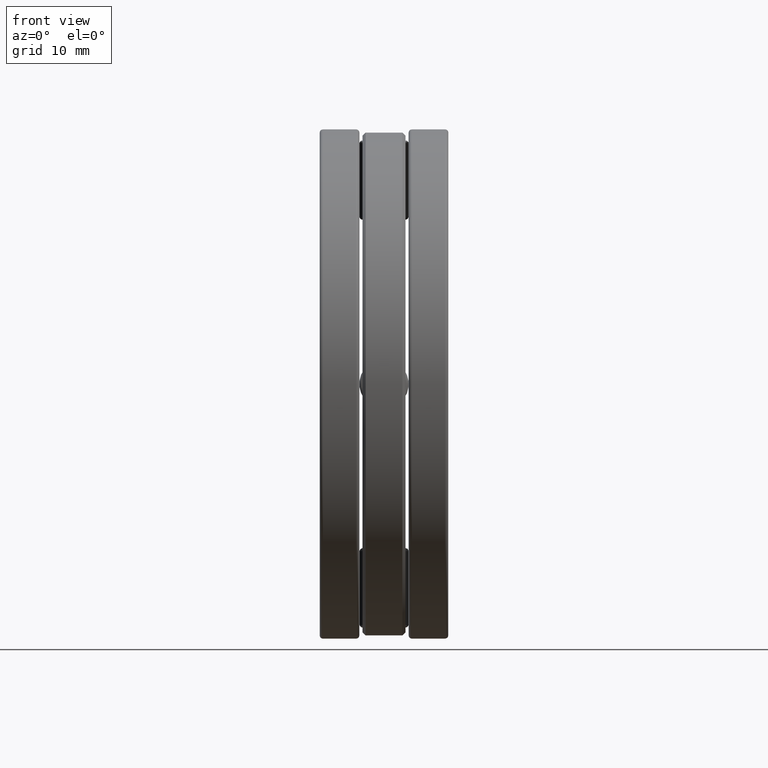
[diagram: clean part render]
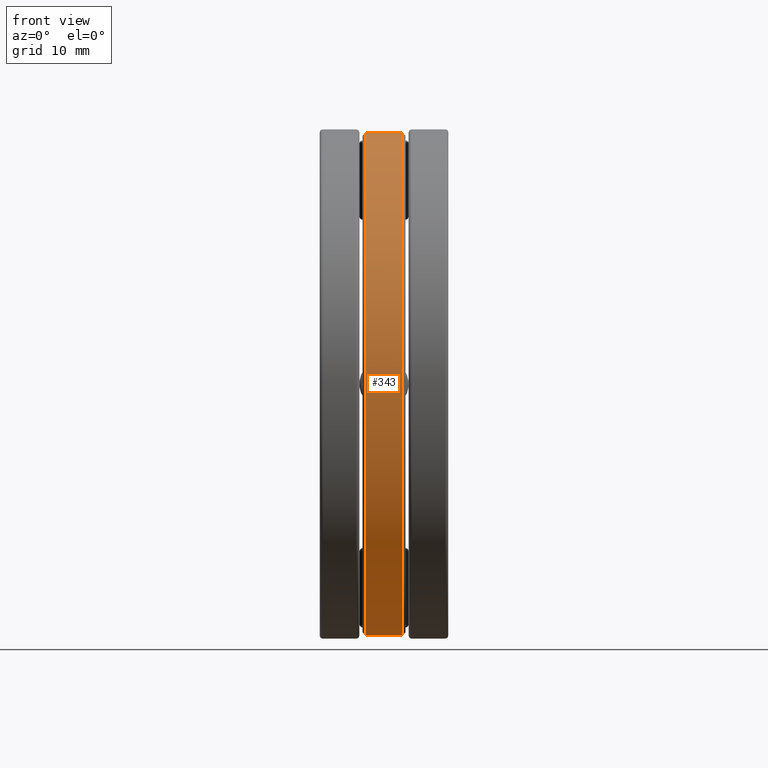
[diagram: same view with one face highlighted and labeled with its STEP entity id]
A machine part, front view. The second image highlights one B-rep face of the part: STEP entity #343.
In plain terms, the highlighted cylindrical surface (bore or boss wall) has radius 40.3701 mm, axis along (-1, -0, -0).
Its self-contained STEP definition (entity closure, byte-faithful):
#44 = ORIENTED_EDGE ( 'NONE', *, *, #307, .T. ) ;
#52 = EDGE_LOOP ( 'NONE', ( #219 ) ) ;
#74 = DIRECTION ( 'NONE',  ( -1.000000000000000000, -0.0000000000000000000, -0.0000000000000000000 ) ) ;
#78 = CARTESIAN_POINT ( 'NONE',  ( -0.1160000000000000300, 0.0000000000000000000, 0.0000000000000000000 ) ) ;
#219 = ORIENTED_EDGE ( 'NONE', *, *, #617, .F. ) ;
#272 = VERTEX_POINT ( 'NONE', #678 ) ;
#307 = EDGE_CURVE ( 'NONE', #272, #272, #352, .T. ) ;
#313 = AXIS2_PLACEMENT_3D ( 'NONE', #1461, #335, #491 ) ;
#335 = DIRECTION ( 'NONE',  ( -1.000000000000000000, -0.0000000000000000000, -0.0000000000000000000 ) ) ;
#343 = ADVANCED_FACE ( 'NONE', ( #541, #1205 ), #929, .T. ) ;
#352 = CIRCLE ( 'NONE', #313, 1.589375000000000200 ) ;
#407 = DIRECTION ( 'NONE',  ( 0.0000000000000000000, 0.0000000000000000000, 1.000000000000000000 ) ) ;
#491 = DIRECTION ( 'NONE',  ( 0.0000000000000000000, 0.0000000000000000000, 1.000000000000000000 ) ) ;
#541 = FACE_OUTER_BOUND ( 'NONE', #1092, .T. ) ;
#617 = EDGE_CURVE ( 'NONE', #821, #821, #1071, .T. ) ;
#661 = DIRECTION ( 'NONE',  ( -1.000000000000000000, -0.0000000000000000000, -0.0000000000000000000 ) ) ;
#666 = AXIS2_PLACEMENT_3D ( 'NONE', #78, #661, #1105 ) ;
#678 = CARTESIAN_POINT ( 'NONE',  ( 0.1160000000000000100, 0.0000000000000000000, 1.589375000000000200 ) ) ;
#745 = CARTESIAN_POINT ( 'NONE',  ( 0.0000000000000000000, 0.0000000000000000000, 0.0000000000000000000 ) ) ;
#807 = CARTESIAN_POINT ( 'NONE',  ( -0.1160000000000000300, 0.0000000000000000000, 1.589375000000000200 ) ) ;
#821 = VERTEX_POINT ( 'NONE', #807 ) ;
#929 = CYLINDRICAL_SURFACE ( 'NONE', #1043, 1.589375000000000200 ) ;
#1043 = AXIS2_PLACEMENT_3D ( 'NONE', #745, #74, #407 ) ;
#1071 = CIRCLE ( 'NONE', #666, 1.589375000000000200 ) ;
#1092 = EDGE_LOOP ( 'NONE', ( #44 ) ) ;
#1105 = DIRECTION ( 'NONE',  ( 0.0000000000000000000, 0.0000000000000000000, 1.000000000000000000 ) ) ;
#1205 = FACE_OUTER_BOUND ( 'NONE', #52, .T. ) ;
#1461 = CARTESIAN_POINT ( 'NONE',  ( 0.1160000000000000100, 0.0000000000000000000, 0.0000000000000000000 ) ) ;